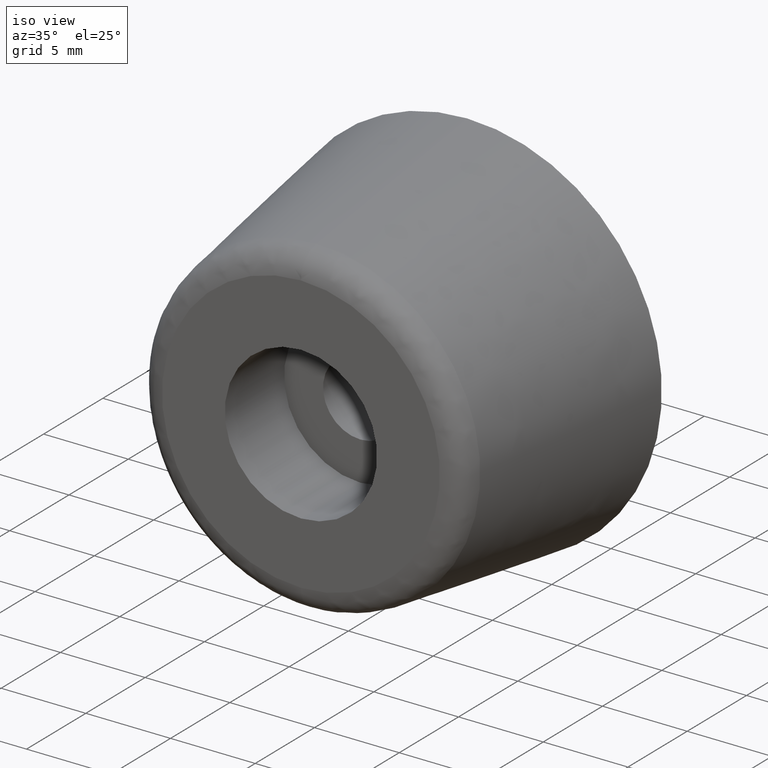
[diagram: clean part render]
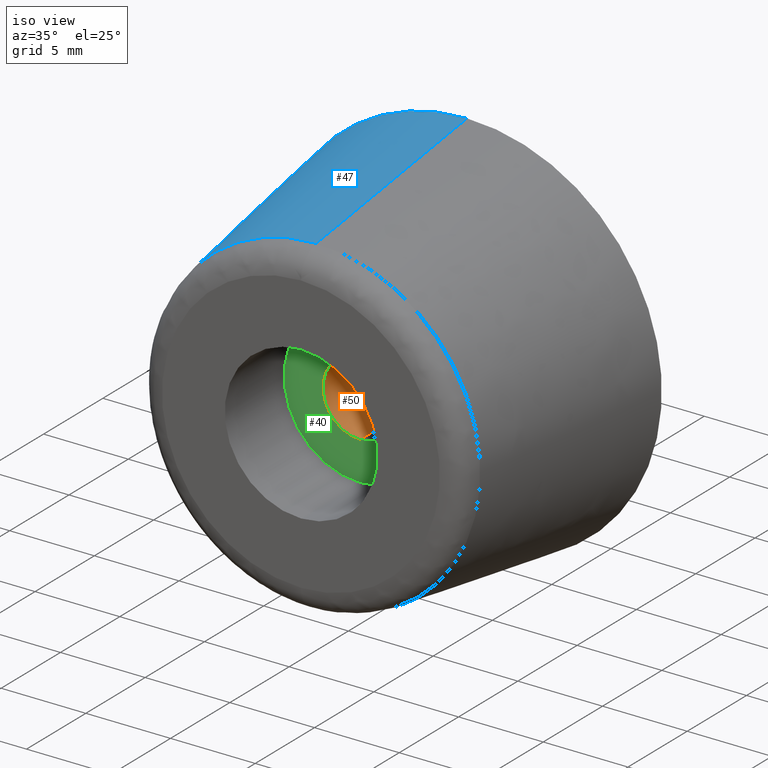
[diagram: same view with three faces highlighted in distinct colors, each labeled with its STEP entity id]
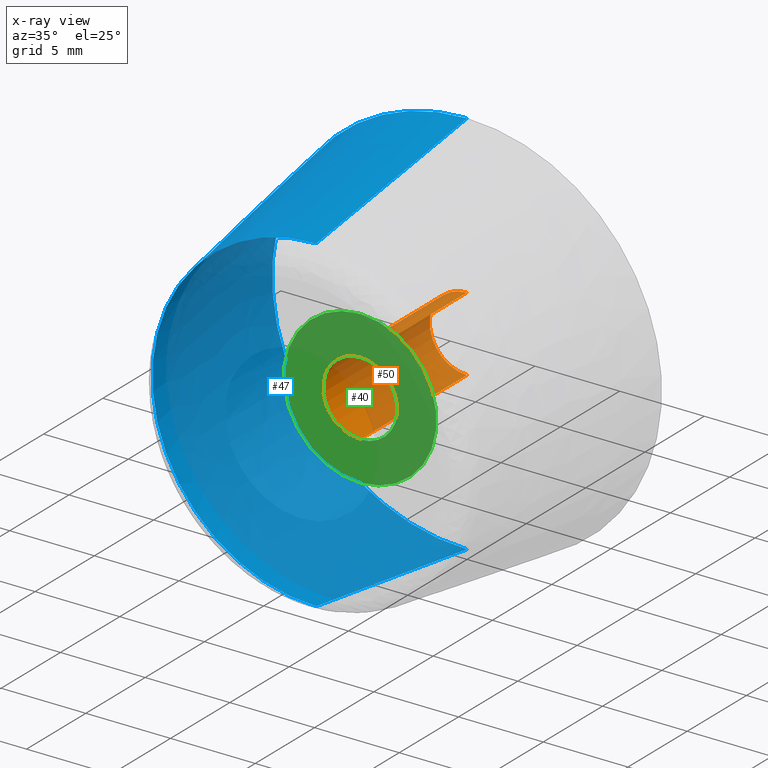
[diagram: x-ray of the same camera — body ghosted, the three highlighted faces saturated]
A machine part, iso view with three faces highlighted in distinct colors.
The next image is the same camera in x-ray (body ghosted, the three faces saturated) — at least one of them is partly hidden behind the body in this view.
Their STEP definitions:

[orange] entity #50 — the highlighted cylindrical surface (partial cylindrical patch) has radius 2.2 mm, axis along (-0, 1, 0).
#50=ADVANCED_FACE('',(#155),#154,.F.);
#154=CYLINDRICAL_SURFACE('',#274,2.20000000000E+00);
#155=FACE_OUTER_BOUND('',#275,.T.);
#271=CARTESIAN_POINT('',(-1.42108547152E-14,0.00000000000E+00,0.00000000000E+00));
#272=DIRECTION('',(-0.00000000000E+00,1.00000000000E+00,0.00000000000E+00));
#273=DIRECTION('',(-0.00000000000E+00,-0.00000000000E+00,1.00000000000E+00));
#274=AXIS2_PLACEMENT_3D('',#271,#272,#273);
#275=EDGE_LOOP('',(#316,#317,#318,#319));
#316=ORIENTED_EDGE('',*,*,#331,.F.);
#317=ORIENTED_EDGE('',*,*,#340,.F.);
#318=ORIENTED_EDGE('',*,*,#322,.T.);
#319=ORIENTED_EDGE('',*,*,#341,.T.);
#322=EDGE_CURVE('',#356,#357,#358,.T.);
#331=EDGE_CURVE('',#413,#412,#420,.T.);
#340=EDGE_CURVE('',#356,#413,#476,.T.);
#341=EDGE_CURVE('',#357,#412,#482,.T.);
#356=VERTEX_POINT('',#498);
#357=VERTEX_POINT('',#499);
#358=CIRCLE('',#503,2.20000000000E+00);
#412=VERTEX_POINT('',#538);
#413=VERTEX_POINT('',#539);
#420=CIRCLE('',#547,2.20000000000E+00);
#476=(BOUNDED_CURVE() B_SPLINE_CURVE(1,(#574,#575),.UNSPECIFIED.,.F.,.F.) B_SPLINE_CURVE_WITH_KNOTS((2,2),(8.33333343261E-02,9.16666664274E-01),.UNSPECIFIED.) CURVE() GEOMETRIC_REPRESENTATION_ITEM() RATIONAL_B_SPLINE_CURVE((1.00000000000E+00,1.00000000000E+00)) REPRESENTATION_ITEM('') );
#482=(BOUNDED_CURVE() B_SPLINE_CURVE(1,(#576,#577),.UNSPECIFIED.,.F.,.F.) B_SPLINE_CURVE_WITH_KNOTS((2,2),(8.33333333333E-02,9.16666666667E-01),.UNSPECIFIED.) CURVE() GEOMETRIC_REPRESENTATION_ITEM() RATIONAL_B_SPLINE_CURVE((7.50000000000E-01,7.50000000000E-01)) REPRESENTATION_ITEM('') );
#498=CARTESIAN_POINT('',(-1.40628249786E-14,-9.00000000000E+00,2.20000000000E+00));
#499=CARTESIAN_POINT('',(-1.42108547152E-14,-9.00000000000E+00,-2.20000000000E+00));
#500=CARTESIAN_POINT('',(-1.42108547152E-14,-9.00000000000E+00,0.00000000000E+00));
#501=DIRECTION('',(0.00000000000E+00,-1.00000000000E+00,-0.00000000000E+00));
#502=DIRECTION('',(-1.22460635382E-16,0.00000000000E+00,-1.00000000000E+00));
#503=AXIS2_PLACEMENT_3D('',#500,#501,#502);
#538=CARTESIAN_POINT('',(-1.42108547152E-14,0.00000000000E+00,-2.20000000000E+00));
#539=CARTESIAN_POINT('',(-1.40628249786E-14,0.00000000000E+00,2.20000000000E+00));
#544=CARTESIAN_POINT('',(-1.42108547152E-14,0.00000000000E+00,0.00000000000E+00));
#545=DIRECTION('',(0.00000000000E+00,-1.00000000000E+00,-0.00000000000E+00));
#546=DIRECTION('',(-1.22460635382E-16,0.00000000000E+00,-1.00000000000E+00));
#547=AXIS2_PLACEMENT_3D('',#544,#545,#546);
#574=CARTESIAN_POINT('',(-1.42108547152E-14,-8.99999998928E+00,2.20000000000E+00));
#575=CARTESIAN_POINT('',(-1.42108547152E-14,-2.58405261633E-08,2.20000000000E+00));
#576=CARTESIAN_POINT('',(-1.43588844518E-14,-9.00000000000E+00,-2.20000000000E+00));
#577=CARTESIAN_POINT('',(-1.43588844518E-14,1.48029736617E-16,-2.20000000000E+00));

[blue] entity #47 — the highlighted face is a freeform B-spline surface patch.
#47=ADVANCED_FACE('',(#125),#124,.T.);
#124=( BOUNDED_SURFACE() B_SPLINE_SURFACE( 2,1,((#244,#245),(#246,#247),(#248,#249),(#250,#251),(#252,#253)), .UNSPECIFIED.,.F.,.F.,.F.) B_SPLINE_SURFACE_WITH_KNOTS((3,2,3),(2,2),(0.00000000000E+00,5.00000000000E-01,1.00000000000E+00),(0.00000000000E+00,1.00000000000E+00), .UNSPECIFIED. ) GEOMETRIC_REPRESENTATION_ITEM() RATIONAL_B_SPLINE_SURFACE(((1.00000000000E+00,1.00000000000E+00),(7.07106781187E-01,7.07106781187E-01),(1.00000000000E+00,1.00000000000E+00),(7.07106781187E-01,7.07106781187E-01),(1.00000000000E+00,1.00000000000E+00))) REPRESENTATION_ITEM('') SURFACE() );
#125=FACE_OUTER_BOUND('',#254,.T.);
#244=CARTESIAN_POINT('',(-1.65827460159E-14,-1.27121320344E+01,-9.68398113795E+00));
#245=CARTESIAN_POINT('',(-1.70275423532E-14,0.00000000000E+00,-1.15000000000E+01));
#246=CARTESIAN_POINT('',(-9.68398113795E+00,-1.27121320344E+01,-9.68398113795E+00));
#247=CARTESIAN_POINT('',(-1.15000000000E+01,0.00000000000E+00,-1.15000000000E+01));
#248=CARTESIAN_POINT('',(-9.68398113795E+00,-1.27121320344E+01,1.77891847554E-15));
#249=CARTESIAN_POINT('',(-1.15000000000E+01,0.00000000000E+00,2.11251572853E-15));
#250=CARTESIAN_POINT('',(-9.68398113795E+00,-1.27121320344E+01,9.68398113795E+00));
#251=CARTESIAN_POINT('',(-1.15000000000E+01,0.00000000000E+00,1.15000000000E+01));
#252=CARTESIAN_POINT('',(-1.30249090648E-14,-1.27121320344E+01,9.68398113795E+00));
#253=CARTESIAN_POINT('',(-1.28025108962E-14,0.00000000000E+00,1.15000000000E+01));
#254=EDGE_LOOP('',(#304,#305,#306,#307));
#304=ORIENTED_EDGE('',*,*,#328,.T.);
#305=ORIENTED_EDGE('',*,*,#338,.F.);
#306=ORIENTED_EDGE('',*,*,#335,.F.);
#307=ORIENTED_EDGE('',*,*,#339,.T.);
#328=EDGE_CURVE('',#398,#399,#400,.T.);
#335=EDGE_CURVE('',#438,#445,#446,.T.);
#338=EDGE_CURVE('',#445,#399,#464,.T.);
#339=EDGE_CURVE('',#438,#398,#470,.T.);
#398=VERTEX_POINT('',#528);
#399=VERTEX_POINT('',#529);
#400=CIRCLE('',#533,1.15000000000E+01);
#438=VERTEX_POINT('',#552);
#445=VERTEX_POINT('',#556);
#446=CIRCLE('',#560,9.68398113795E+00);
#464=(BOUNDED_CURVE() B_SPLINE_CURVE(1,(#570,#571),.UNSPECIFIED.,.F.,.F.) B_SPLINE_CURVE_WITH_KNOTS((2,2),(0.00000000000E+00,1.00000000000E+00),.UNSPECIFIED.) CURVE() GEOMETRIC_REPRESENTATION_ITEM() RATIONAL_B_SPLINE_CURVE((1.00000000000E+00,1.00000000000E+00)) REPRESENTATION_ITEM('') );
#470=(BOUNDED_CURVE() B_SPLINE_CURVE(1,(#572,#573),.UNSPECIFIED.,.F.,.F.) B_SPLINE_CURVE_WITH_KNOTS((2,2),(0.00000000000E+00,1.00000000000E+00),.UNSPECIFIED.) CURVE() GEOMETRIC_REPRESENTATION_ITEM() RATIONAL_B_SPLINE_CURVE((7.50000000000E-01,7.50000000000E-01)) REPRESENTATION_ITEM('') );
#528=CARTESIAN_POINT('',(-1.36187357687E-14,0.00000000000E+00,1.15000000000E+01));
#529=CARTESIAN_POINT('',(-1.42108547152E-14,0.00000000000E+00,-1.15000000000E+01));
#530=CARTESIAN_POINT('',(-1.42108547152E-14,0.00000000000E+00,0.00000000000E+00));
#531=DIRECTION('',(0.00000000000E+00,-1.00000000000E+00,-0.00000000000E+00));
#532=DIRECTION('',(-1.22460635382E-16,0.00000000000E+00,-1.00000000000E+00));
#533=AXIS2_PLACEMENT_3D('',#530,#531,#532);
#552=CARTESIAN_POINT('',(-1.36187357687E-14,-1.27121320344E+01,9.68398113795E+00));
#556=CARTESIAN_POINT('',(-1.42108547152E-14,-1.27121320344E+01,-9.68398113795E+00));
#557=CARTESIAN_POINT('',(-1.42108547152E-14,-1.27121320344E+01,0.00000000000E+00));
#558=DIRECTION('',(0.00000000000E+00,-1.00000000000E+00,-0.00000000000E+00));
#559=DIRECTION('',(-1.22460635382E-16,0.00000000000E+00,-1.00000000000E+00));
#560=AXIS2_PLACEMENT_3D('',#557,#558,#559);
#570=CARTESIAN_POINT('',(-1.65826676816E-14,-1.27121320344E+01,-9.68398113795E+00));
#571=CARTESIAN_POINT('',(-1.70274493290E-14,0.00000000000E+00,-1.15000000000E+01));
#572=CARTESIAN_POINT('',(-1.12502599829E-14,-1.27121320344E+01,9.68398113795E+00));
#573=CARTESIAN_POINT('',(-1.06581410364E-14,0.00000000000E+00,1.15000000000E+01));

[green] entity #40 — the highlighted planar face has unit normal (0, 1, 0).
#40=ADVANCED_FACE('',(#52,#53),#51,.F.);
#51=PLANE('',#167);
#52=FACE_OUTER_BOUND('',#168,.T.);
#53=FACE_BOUND('',#169,.T.);
#164=CARTESIAN_POINT('',(-9.35307436087E+00,-9.00000000000E+00,-5.85000000000E+00));
#165=DIRECTION('',(0.00000000000E+00,1.00000000000E+00,0.00000000000E+00));
#166=DIRECTION('',(0.00000000000E+00,-0.00000000000E+00,1.00000000000E+00));
#167=AXIS2_PLACEMENT_3D('',#164,#165,#166);
#168=EDGE_LOOP('',(#276,#277));
#169=EDGE_LOOP('',(#278,#279));
#276=ORIENTED_EDGE('',*,*,#320,.T.);
#277=ORIENTED_EDGE('',*,*,#321,.T.);
#278=ORIENTED_EDGE('',*,*,#322,.F.);
#279=ORIENTED_EDGE('',*,*,#323,.F.);
#320=EDGE_CURVE('',#342,#343,#344,.T.);
#321=EDGE_CURVE('',#343,#342,#350,.T.);
#322=EDGE_CURVE('',#356,#357,#358,.T.);
#323=EDGE_CURVE('',#357,#356,#364,.T.);
#342=VERTEX_POINT('',#488);
#343=VERTEX_POINT('',#489);
#344=CIRCLE('',#493,4.50000000000E+00);
#350=CIRCLE('',#497,4.50000000000E+00);
#356=VERTEX_POINT('',#498);
#357=VERTEX_POINT('',#499);
#358=CIRCLE('',#503,2.20000000000E+00);
#364=CIRCLE('',#507,2.20000000000E+00);
#488=CARTESIAN_POINT('',(-1.42108547152E-14,-9.00000000000E+00,-4.50000000000E+00));
#489=CARTESIAN_POINT('',(-1.37667655054E-14,-9.00000000000E+00,4.50000000000E+00));
#490=CARTESIAN_POINT('',(-1.42108547152E-14,-9.00000000000E+00,0.00000000000E+00));
#491=DIRECTION('',(0.00000000000E+00,-1.00000000000E+00,-0.00000000000E+00));
#492=DIRECTION('',(-1.22460635382E-16,0.00000000000E+00,-1.00000000000E+00));
#493=AXIS2_PLACEMENT_3D('',#490,#491,#492);
#494=CARTESIAN_POINT('',(-1.42108547152E-14,-9.00000000000E+00,0.00000000000E+00));
#495=DIRECTION('',(0.00000000000E+00,-1.00000000000E+00,-0.00000000000E+00));
#496=DIRECTION('',(-1.22460635382E-16,0.00000000000E+00,-1.00000000000E+00));
#497=AXIS2_PLACEMENT_3D('',#494,#495,#496);
#498=CARTESIAN_POINT('',(-1.40628249786E-14,-9.00000000000E+00,2.20000000000E+00));
#499=CARTESIAN_POINT('',(-1.42108547152E-14,-9.00000000000E+00,-2.20000000000E+00));
#500=CARTESIAN_POINT('',(-1.42108547152E-14,-9.00000000000E+00,0.00000000000E+00));
#501=DIRECTION('',(0.00000000000E+00,-1.00000000000E+00,-0.00000000000E+00));
#502=DIRECTION('',(-1.22460635382E-16,0.00000000000E+00,-1.00000000000E+00));
#503=AXIS2_PLACEMENT_3D('',#500,#501,#502);
#504=CARTESIAN_POINT('',(-1.42108547152E-14,-9.00000000000E+00,0.00000000000E+00));
#505=DIRECTION('',(0.00000000000E+00,-1.00000000000E+00,-0.00000000000E+00));
#506=DIRECTION('',(-1.22460635382E-16,0.00000000000E+00,-1.00000000000E+00));
#507=AXIS2_PLACEMENT_3D('',#504,#505,#506);